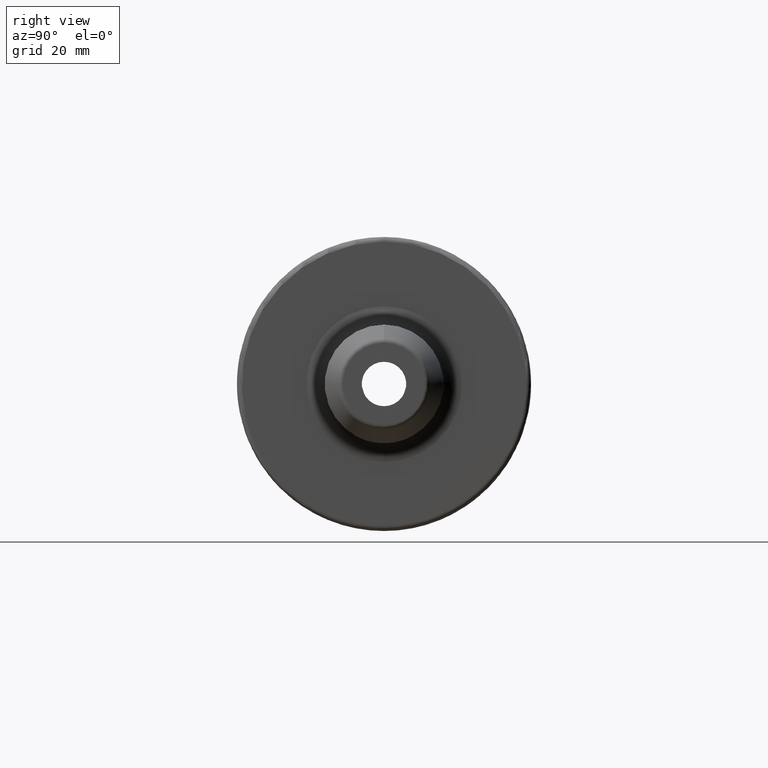
[diagram: clean part render]
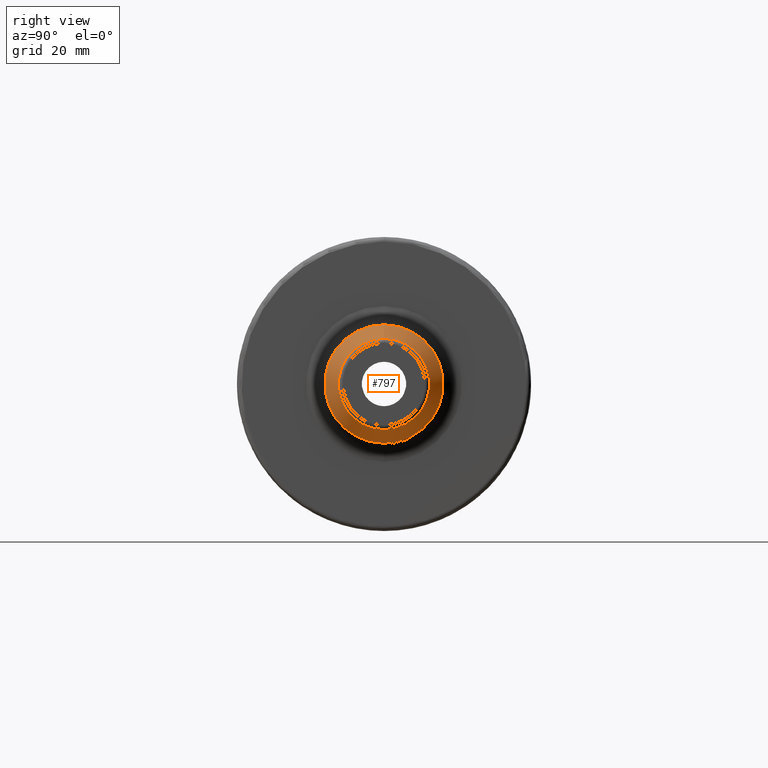
[diagram: same view with one face highlighted and labeled with its STEP entity id]
A machine part, right view. The second image highlights one B-rep face of the part: STEP entity #797.
In plain terms, the highlighted conical surface has half-angle 25 deg.
Its self-contained STEP definition (entity closure, byte-faithful):
#34=CONICAL_SURFACE('',#874,11.1,0.436332312998582);
#59=CIRCLE('',#867,12.7);
#64=CIRCLE('',#873,9.76923752622915);
#132=FACE_OUTER_BOUND('',#182,.T.);
#182=EDGE_LOOP('',(#565,#566,#567,#568));
#255=LINE('',#1430,#301);
#301=VECTOR('',#992,11.1);
#348=VERTEX_POINT('',#1416);
#352=VERTEX_POINT('',#1426);
#429=EDGE_CURVE('',#348,#348,#59,.T.);
#435=EDGE_CURVE('',#352,#352,#64,.T.);
#436=EDGE_CURVE('',#352,#348,#255,.T.);
#565=ORIENTED_EDGE('',*,*,#435,.F.);
#566=ORIENTED_EDGE('',*,*,#436,.T.);
#567=ORIENTED_EDGE('',*,*,#429,.T.);
#568=ORIENTED_EDGE('',*,*,#436,.F.);
#797=ADVANCED_FACE('',(#132),#34,.T.);
#867=AXIS2_PLACEMENT_3D('',#1417,#975,#976);
#873=AXIS2_PLACEMENT_3D('',#1428,#988,#989);
#874=AXIS2_PLACEMENT_3D('',#1429,#990,#991);
#975=DIRECTION('center_axis',(1.,0.,0.));
#976=DIRECTION('ref_axis',(0.,0.,-1.));
#988=DIRECTION('center_axis',(1.,0.,0.));
#989=DIRECTION('ref_axis',(0.,0.,1.));
#990=DIRECTION('center_axis',(-1.,0.,0.));
#991=DIRECTION('ref_axis',(0.,0.,-1.));
#992=DIRECTION('',(-0.90630778703665,-5.17558101501965E-17,0.422618261740699));
#1416=CARTESIAN_POINT('',(56.6375778543694,-1.55530143491714E-15,12.7));
#1417=CARTESIAN_POINT('Origin',(56.6375778543694,0.,0.));
#1426=CARTESIAN_POINT('',(62.9226182617407,-1.19638654666067E-15,9.76923752622915));
#1428=CARTESIAN_POINT('Origin',(62.9226182617407,-1.19638654666067E-15,
0.));
#1429=CARTESIAN_POINT('Origin',(60.0687889271847,0.,0.));
#1430=CARTESIAN_POINT('',(60.0687889271847,-1.35935794705356E-15,11.1));